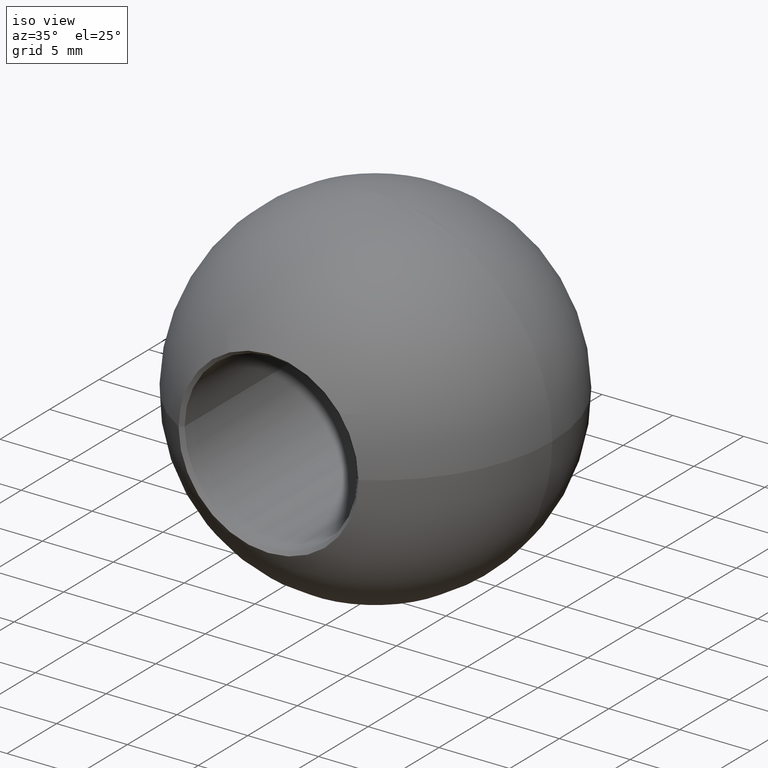
[diagram: clean part render]
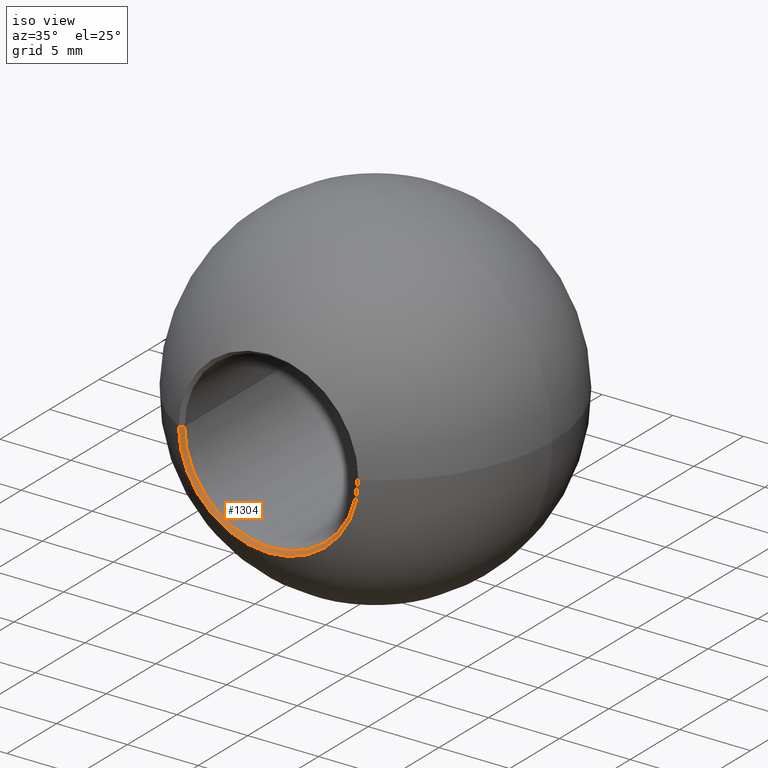
[diagram: same view with one face highlighted and labeled with its STEP entity id]
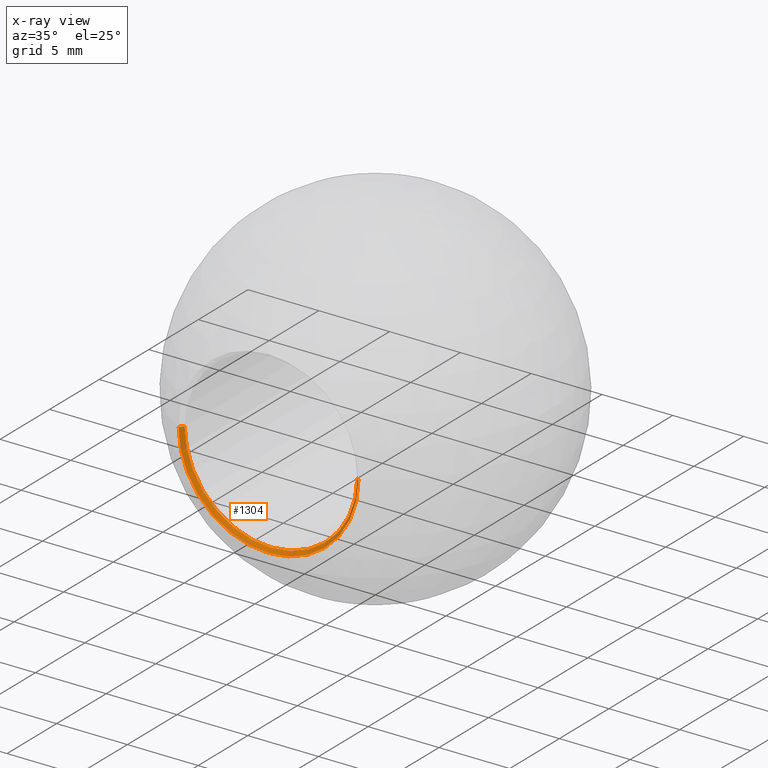
[diagram: x-ray of the same camera — body ghosted, the highlighted face saturated]
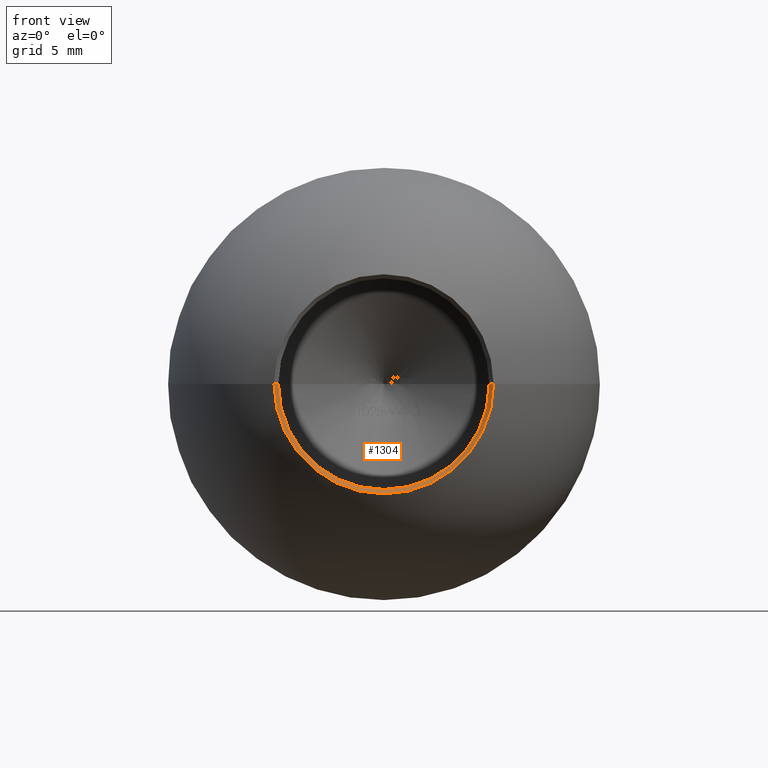
[diagram: same view with one face highlighted and labeled with its STEP entity id]
A machine part, iso view. The second image highlights one B-rep face of the part: STEP entity #1304.
The next image is the same camera in x-ray: the body ghosted, the highlighted face saturated — about 0% of this face is hidden behind the body in this view.
A second angle (front view) of the same face is appended — the face is thin or edge-on in the first view.
In plain terms, the highlighted conical surface has half-angle 45 deg.
Its self-contained STEP definition (entity closure, byte-faithful):
#1304 = ADVANCED_FACE ( 'NONE', ( #5155 ), #2935, .F. ) ;
#1604 = EDGE_CURVE ( 'NONE', #2724, #8290, #7550, .T. ) ;
#1739 = CIRCLE ( 'NONE', #6796, 6.350000000000000500 ) ;
#1878 = CARTESIAN_POINT ( 'NONE',  ( -8.737122991352304000E-018, -10.51696336020513400, 0.0000000000000000000 ) ) ;
#2289 = AXIS2_PLACEMENT_3D ( 'NONE', #8018, #10797, #7017 ) ;
#2372 = AXIS2_PLACEMENT_3D ( 'NONE', #1878, #4565, #8125 ) ;
#2455 = CARTESIAN_POINT ( 'NONE',  ( 6.350000000000000500, -10.76696336020514100, 0.0000000000000000000 ) ) ;
#2662 = VECTOR ( 'NONE', #7791, 1000.000000000000000 ) ;
#2724 = VERTEX_POINT ( 'NONE', #8639 ) ;
#2730 = EDGE_LOOP ( 'NONE', ( #5355, #7037, #7720, #5290 ) ) ;
#2912 = LINE ( 'NONE', #9419, #3750 ) ;
#2935 = CONICAL_SURFACE ( 'NONE', #2289, 6.100000000000003200, 0.7853981633974291800 ) ;
#3574 = EDGE_CURVE ( 'NONE', #9225, #7481, #2912, .T. ) ;
#3750 = VECTOR ( 'NONE', #8340, 1000.000000000000000 ) ;
#4565 = DIRECTION ( 'NONE',  ( -3.795949471969979100E-019, -1.000000000000000000, -0.0000000000000000000 ) ) ;
#5093 = CARTESIAN_POINT ( 'NONE',  ( -6.350000000000000500, -10.76696336020514100, 7.776507174585693100E-016 ) ) ;
#5155 = FACE_OUTER_BOUND ( 'NONE', #2730, .T. ) ;
#5290 = ORIENTED_EDGE ( 'NONE', *, *, #1604, .F. ) ;
#5316 = DIRECTION ( 'NONE',  ( 1.000000000000000000, 0.0000000000000000000, 0.0000000000000000000 ) ) ;
#5355 = ORIENTED_EDGE ( 'NONE', *, *, #6762, .F. ) ;
#6232 = CIRCLE ( 'NONE', #2372, 6.100000000000003200 ) ;
#6762 = EDGE_CURVE ( 'NONE', #9225, #2724, #6232, .T. ) ;
#6796 = AXIS2_PLACEMENT_3D ( 'NONE', #10738, #7105, #5316 ) ;
#6864 = CARTESIAN_POINT ( 'NONE',  ( -6.100000000000003200, -10.51696336020513400, 7.623426324692276200E-016 ) ) ;
#6899 = CARTESIAN_POINT ( 'NONE',  ( 6.100000000000003200, -10.51696336020513400, 0.0000000000000000000 ) ) ;
#7017 = DIRECTION ( 'NONE',  ( 1.000000000000000000, 0.0000000000000000000, 0.0000000000000000000 ) ) ;
#7037 = ORIENTED_EDGE ( 'NONE', *, *, #3574, .T. ) ;
#7105 = DIRECTION ( 'NONE',  ( -3.795949471969979100E-019, -1.000000000000000000, -0.0000000000000000000 ) ) ;
#7481 = VERTEX_POINT ( 'NONE', #5093 ) ;
#7550 = LINE ( 'NONE', #6899, #2662 ) ;
#7720 = ORIENTED_EDGE ( 'NONE', *, *, #11204, .T. ) ;
#7791 = DIRECTION ( 'NONE',  ( 0.7071067811865340300, -0.7071067811865610100, 0.0000000000000000000 ) ) ;
#8018 = CARTESIAN_POINT ( 'NONE',  ( -8.737122991352304000E-018, -10.51696336020513400, 0.0000000000000000000 ) ) ;
#8125 = DIRECTION ( 'NONE',  ( 1.000000000000000000, 0.0000000000000000000, 0.0000000000000000000 ) ) ;
#8290 = VERTEX_POINT ( 'NONE', #2455 ) ;
#8340 = DIRECTION ( 'NONE',  ( -0.7071067811865340300, -0.7071067811865610100, 8.659560562354767700E-017 ) ) ;
#8639 = CARTESIAN_POINT ( 'NONE',  ( 6.100000000000003200, -10.51696336020513400, 0.0000000000000000000 ) ) ;
#9225 = VERTEX_POINT ( 'NONE', #6864 ) ;
#9419 = CARTESIAN_POINT ( 'NONE',  ( -6.100000000000003200, -10.51696336020513400, 7.470345474798858200E-016 ) ) ;
#10738 = CARTESIAN_POINT ( 'NONE',  ( -8.832021728151556100E-018, -10.76696336020514100, 0.0000000000000000000 ) ) ;
#10797 = DIRECTION ( 'NONE',  ( -3.795949471969979100E-019, -1.000000000000000000, -0.0000000000000000000 ) ) ;
#11204 = EDGE_CURVE ( 'NONE', #7481, #8290, #1739, .T. ) ;